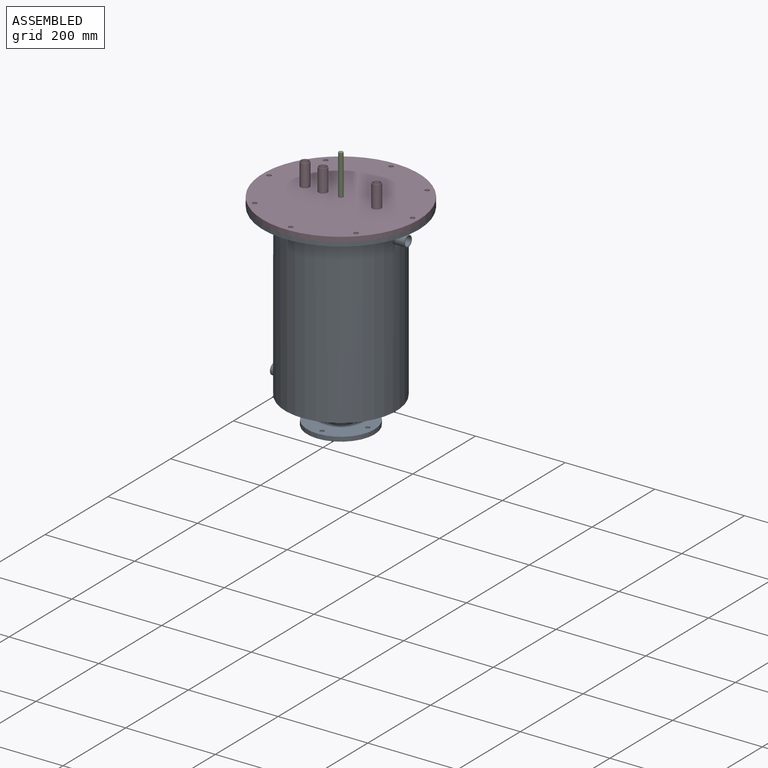
[diagram: assembled view]
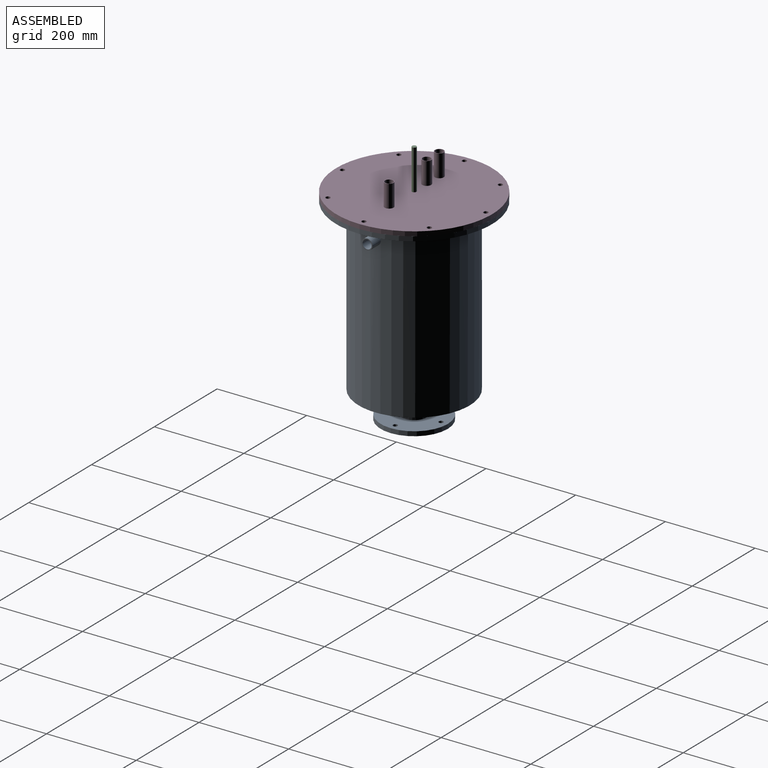
[diagram: assembled view, second angle]
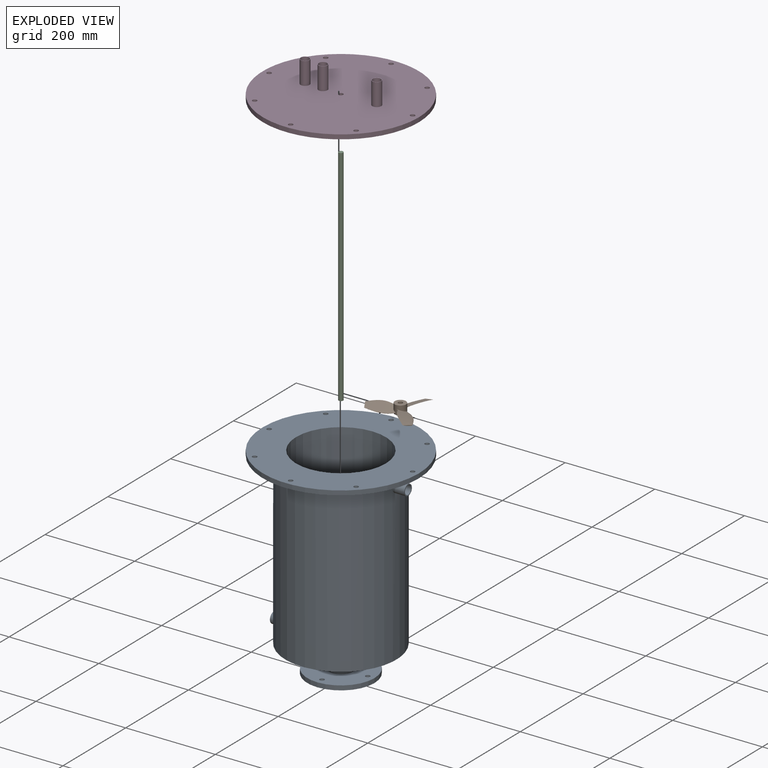
[diagram: exploded view]
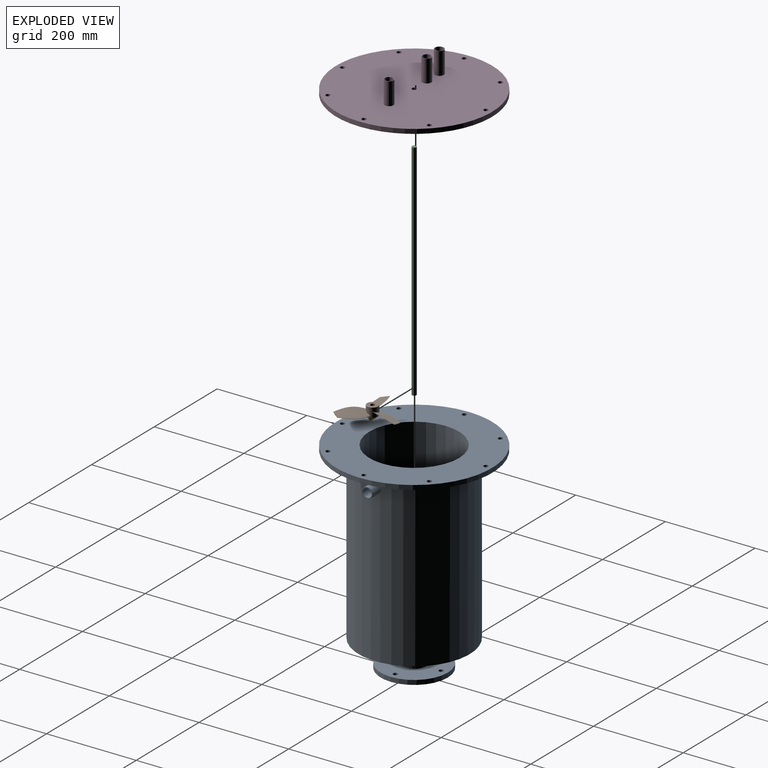
[diagram: exploded view, second angle]
ASSEMBLY  parts=4 mates=2
PART A: 37 faces, bbox 348x348x449.2 mm
  f0: cylinder r=124mm len=378.84mm, axis (0,0,-1), area 294255.4mm2, adj f9,f10,f21,f23
  f1: plane 244x243.99mm, normal (0,0,1), area 14067.3mm2, adj f2,f3,f5,f6
  f2: cylinder r=122mm len=376.84mm, axis (0,0,-1), area 288241.9mm2, adj f1,f4,f6,f24
  f3: cylinder r=102mm len=376.84mm, axis (0,0,-1), area 241513.9mm2, adj f1,f4
  f4: plane 244x244mm, normal (0,0,-1), area 14074.3mm2, adj f2,f3
  f5: plane 3.51x0.16mm, normal (-1,0,0), area 0.4mm2, adj f1,f6
  f6: cylinder r=10mm len=30mm, axis (-1,0,0), area 1779.2mm2, adj f1,f2,f5,f20
  f7: plane 348x348mm, normal (0,0,1), area 63070.6mm2, adj f8,f18,f29,f30,f31,f32,f33,f34
  f8: cylinder r=174mm len=348mm, axis (0,0,-1), area 10932.7mm2, adj f7,f9
  f9: plane 348x348mm, normal (0,0,-1), area 46181.4mm2, adj f0,f8,f29,f30,f31,f32,f33,f34
  f10: plane 248x248mm, normal (0,0,-1), area 15620mm2, adj f0,f11,f19
  f11: sphere r=402mm, area 30936mm2, adj f10,f12
  f12: cylinder r=27mm len=54mm, axis (0,0,-1), area 6467.9mm2, adj f11,f13
  f13: plane 150x150mm, normal (0,0,1), area 15067.1mm2, adj f12,f14,f25,f26,f27,f28
  f14: cylinder r=75mm len=150mm, axis (0,0,-1), area 4712.4mm2, adj f13,f15
  f15: plane 150x150mm, normal (0,0,-1), area 15393.8mm2, adj f14,f16,f25,f26,f27,f28
  f16: cylinder r=25mm len=50mm, axis (0,0,-1), area 7854mm2, adj f15,f17
  f17: sphere r=400mm, area 29957.4mm2, adj f16,f18
  f18: cylinder r=100mm len=387.3mm, axis (0,0,-1), area 243346.7mm2, adj f7,f17
  f19: cylinder r=124mm len=3.85mm, axis (0,0,-1), area 0.4mm2, adj f10,f21
  f20: plane 24x24mm, normal (-1,0,0), area 138.2mm2, adj f6,f21
  f21: cylinder r=12mm len=26.58mm, axis (-1,0,0), area 1982.3mm2, adj f0,f19,f20
  f22: plane 24x24mm, normal (1,0,0), area 138.2mm2, adj f23,f24
  f23: cylinder r=12mm len=26.58mm, axis (1,0,0), area 1982.2mm2, adj f0,f22
  f24: cylinder r=10mm len=28.41mm, axis (1,0,0), area 1772.2mm2, adj f2,f22
  f25: cylinder r=5mm len=10mm, axis (0,0,-1), area 314.2mm2, adj f13,f15
  f26: cylinder r=5mm len=10mm, axis (0,0,-1), area 314.2mm2, adj f13,f15
  f27: cylinder r=5mm len=10mm, axis (0,0,-1), area 314.2mm2, adj f13,f15
  f28: cylinder r=5mm len=10mm, axis (0,0,-1), area 314.2mm2, adj f13,f15
  f29: cylinder r=5mm len=10mm, axis (0,0,1), area 314.2mm2, adj f7,f9
  f30: cylinder r=5mm len=10mm, axis (0,0,1), area 314.2mm2, adj f7,f9
  f31: cylinder r=5mm len=10mm, axis (0,0,1), area 314.2mm2, adj f7,f9
  f32: cylinder r=5mm len=10mm, axis (0,0,1), area 314.2mm2, adj f7,f9
  f33: cylinder r=5mm len=10mm, axis (0,0,1), area 314.2mm2, adj f7,f9
  f34: cylinder r=5mm len=10mm, axis (0,0,1), area 314.2mm2, adj f7,f9
  f35: cylinder r=5mm len=10mm, axis (0,0,1), area 314.2mm2, adj f7,f9
  f36: cylinder r=5mm len=10mm, axis (0,0,1), area 314.2mm2, adj f7,f9
PART B: 19 faces, bbox 127.8x125.5x31.6 mm
  f0: cylinder r=12.5mm len=25mm, axis (0,0,-1), area 1390.9mm2, adj f1,f12,f13,f14,f15,f16,f17,f18
  f1: plane 25x25mm, normal (0,0,-1), area 412.3mm2, adj f0,f11
  f2: bspline ~73.51x30.51mm, area 1219.2mm2, adj f3,f4,f16,f17
  f3: bspline ~68.36x31.81mm, area 2053.8mm2, adj f2,f4,f16
  f4: plane 18.67x11.47mm, normal (-0.87,0.5,0), area 21.1mm2, adj f2,f3
  f5: bspline ~57.89x31.32mm, area 1219.2mm2, adj f6,f7,f14,f15
  f6: bspline ~67x42.86mm, area 2053.8mm2, adj f5,f7,f14
  f7: plane 21.3x5.8mm, normal (0,-1,0), area 21.1mm2, adj f5,f6
  f8: bspline ~56.04x48.91mm, area 1219.2mm2, adj f9,f10,f12,f13
  f9: bspline ~60.25x51.4mm, area 2053.8mm2, adj f8,f10,f12
  f10: plane 18.67x11.47mm, normal (0.87,0.5,0), area 21.1mm2, adj f8,f9
  f11: cylinder r=5mm len=30mm, axis (0,0,1), area 942.5mm2, adj f1,f18
  f12: bspline ~18.18x16.2mm, area 48.9mm2, adj f0,f8,f9,f13
  f13: bspline ~14.97x11.42mm, area 26.7mm2, adj f0,f8,f12
  f14: bspline ~22.71x11mm, area 48.9mm2, adj f0,f5,f6,f15
  f15: bspline ~16.87x11.42mm, area 26.7mm2, adj f0,f5,f14
  f16: bspline ~21.91x11.61mm, area 48.9mm2, adj f0,f2,f3,f17
  f17: bspline ~18.67x11.63mm, area 26.7mm2, adj f0,f2,f16
  f18: torus R=2.5mm, axis (0,0,1), area 815.4mm2, adj f0,f11
PART C: 3 faces, bbox 10x10x500 mm
  f0: cylinder r=5mm len=500mm, axis (0,0,-1), area 15708mm2, adj f1,f2
  f1: plane 10x10mm, normal (0,0,1), area 78.5mm2, adj f0
  f2: plane 10x10mm, normal (0,0,-1), area 78.5mm2, adj f0
PART D: 21 faces, bbox 348x348x60 mm
  f0: cylinder r=174mm len=348mm, axis (0,0,-1), area 10932.7mm2, adj f1,f2
  f1: plane 348x348mm, normal (0,0,1), area 93465.5mm2, adj f0,f3,f4,f5,f6,f7,f8,f9
  f2: plane 348x348mm, normal (0,0,-1), area 93644.6mm2, adj f0,f3,f4,f5,f6,f7,f8,f9
  f3: cylinder r=5mm len=10mm, axis (0,0,1), area 314.2mm2, adj f1,f2
  f4: cylinder r=5mm len=10mm, axis (0,0,1), area 314.2mm2, adj f1,f2
  f5: cylinder r=5mm len=10mm, axis (0,0,1), area 314.2mm2, adj f1,f2
  f6: cylinder r=5mm len=10mm, axis (0,0,1), area 314.2mm2, adj f1,f2
  f7: cylinder r=5mm len=10mm, axis (0,0,1), area 314.2mm2, adj f1,f2
  f8: cylinder r=5mm len=10mm, axis (0,0,1), area 314.2mm2, adj f1,f2
  f9: cylinder r=5mm len=10mm, axis (0,0,1), area 314.2mm2, adj f1,f2
  f10: cylinder r=5mm len=10mm, axis (0,0,1), area 314.2mm2, adj f1,f2
  f11: cylinder r=5mm len=10mm, axis (0,0,1), area 314.2mm2, adj f1,f2
  f12: cylinder r=10mm len=50mm, axis (0,0,-1), area 3141.6mm2, adj f1,f13
  f13: plane 20x20mm, normal (0,0,1), area 59.7mm2, adj f12,f20
  f14: cylinder r=10mm len=50mm, axis (0,0,-1), area 3141.6mm2, adj f1,f15
  f15: plane 20x20mm, normal (0,0,1), area 59.7mm2, adj f14,f19
  f16: cylinder r=10mm len=50mm, axis (0,0,-1), area 3141.6mm2, adj f1,f17
  f17: plane 20x20mm, normal (0,0,1), area 59.7mm2, adj f16,f18
  f18: cylinder r=9mm len=60mm, axis (0,0,1), area 3392.9mm2, adj f2,f17
  f19: cylinder r=9mm len=60mm, axis (0,0,1), area 3392.9mm2, adj f2,f15
  f20: cylinder r=9mm len=60mm, axis (0,0,1), area 3392.9mm2, adj f2,f13
PLACE A at identity fixed
PLACE B rot(axis=(1,0,0),180deg) t=(-4.44,0,15)mm
PLACE C at identity fixed
PLACE D t=(0,0,400)mm
MATE fastened A.f0 <-> D.f0  axis (0,0,1) through (0,0,400)mm
MATE fastened C.f0 <-> B.f0  axis (0,0,-1) through (0,0,0)mm
